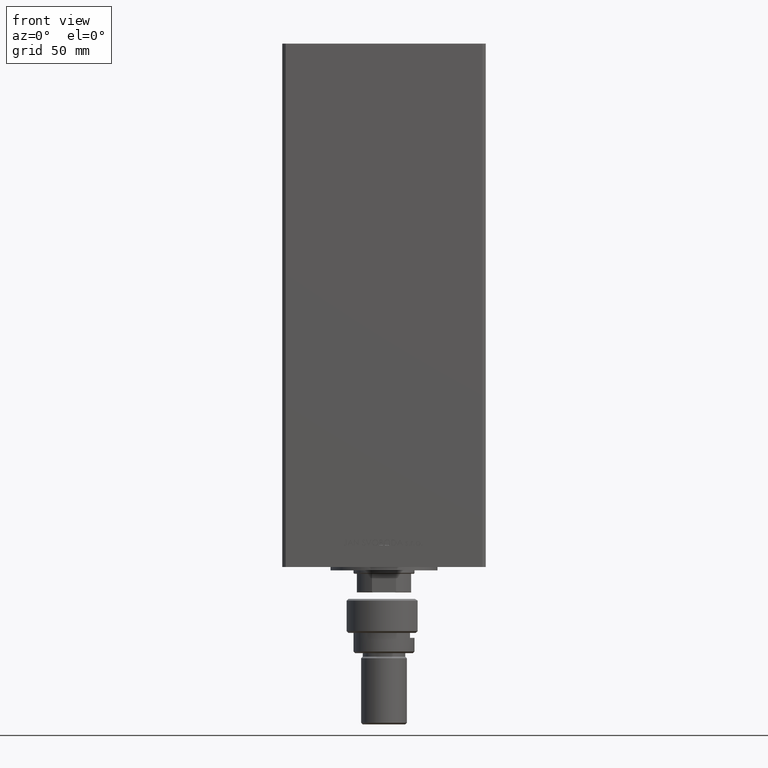
[diagram: clean part render]
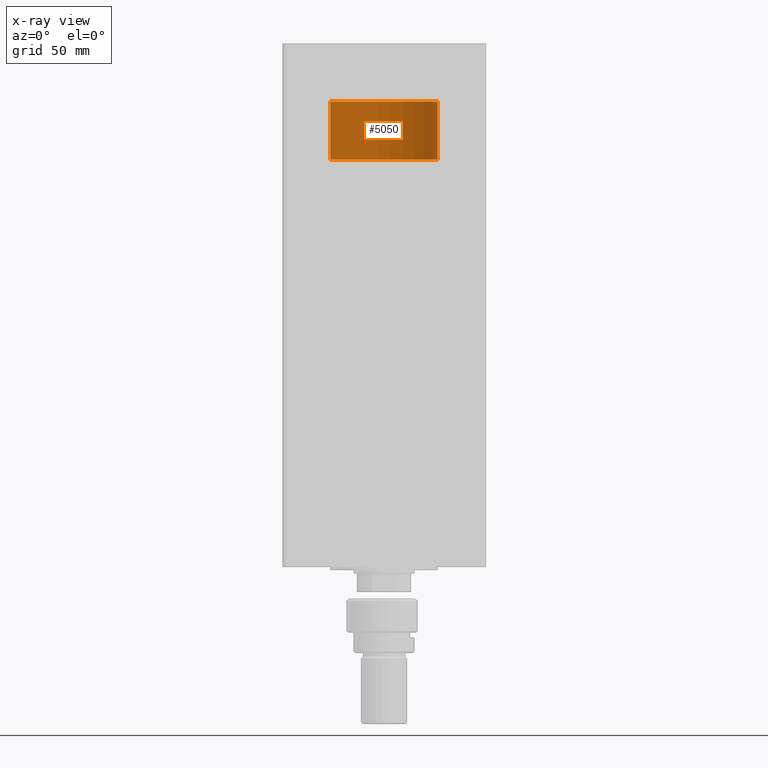
[diagram: x-ray — body ghosted, one internal face saturated and labeled with its STEP entity id]
A machine part, front view, then the same camera in x-ray: the body is ghosted and one INTERNAL B-rep face — a face not visible from any outside direction — is saturated and labeled: STEP entity #5050.
In plain terms, the highlighted cylindrical surface (partial cylindrical patch) has radius 31.5 mm, axis along (0, -0, 1).
Its self-contained STEP definition (entity closure, byte-faithful):
#1247 = ORIENTED_EDGE ( 'NONE', *, *, #35538, .T. ) ;
#1557 = CARTESIAN_POINT ( 'NONE',  ( -31.50000000000000000, 0.000000000000000000, 0.000000000000000000 ) ) ;
#1677 = ORIENTED_EDGE ( 'NONE', *, *, #7058, .F. ) ;
#1944 = CARTESIAN_POINT ( 'NONE',  ( 0.000000000000000000, 0.000000000000000000, 34.25000000000000000 ) ) ;
#2085 = CARTESIAN_POINT ( 'NONE',  ( 31.50000000000000000, 3.857637417314162689E-15, 34.25000000000000000 ) ) ;
#2427 = DIRECTION ( 'NONE',  ( -0.000000000000000000, -0.000000000000000000, -1.000000000000000000 ) ) ;
#2670 = VECTOR ( 'NONE', #26120, 1000.000000000000000 ) ;
#3125 = EDGE_CURVE ( 'NONE', #45974, #47592, #6576, .T. ) ;
#5050 = ADVANCED_FACE ( 'NONE', ( #21753 ), #33706, .T. ) ;
#5910 = DIRECTION ( 'NONE',  ( 0.000000000000000000, 0.000000000000000000, 1.000000000000000000 ) ) ;
#6576 = CIRCLE ( 'NONE', #19566, 31.50000000000000000 ) ;
#7058 = EDGE_CURVE ( 'NONE', #29254, #13486, #31496, .T. ) ;
#10861 = CARTESIAN_POINT ( 'NONE',  ( -31.50000000000000000, 0.000000000000000000, 34.25000000000000000 ) ) ;
#12667 = ORIENTED_EDGE ( 'NONE', *, *, #22013, .F. ) ;
#13486 = VERTEX_POINT ( 'NONE', #39541 ) ;
#14639 = DIRECTION ( 'NONE',  ( 1.000000000000000000, 0.000000000000000000, 0.000000000000000000 ) ) ;
#19566 = AXIS2_PLACEMENT_3D ( 'NONE', #44557, #5910, #47878 ) ;
#21021 = VECTOR ( 'NONE', #32105, 1000.000000000000000 ) ;
#21753 = FACE_OUTER_BOUND ( 'NONE', #44316, .T. ) ;
#21773 = DIRECTION ( 'NONE',  ( 0.000000000000000000, 0.000000000000000000, 1.000000000000000000 ) ) ;
#22013 = EDGE_CURVE ( 'NONE', #13486, #47592, #22312, .T. ) ;
#22312 = LINE ( 'NONE', #10861, #2670 ) ;
#24212 = LINE ( 'NONE', #2085, #21021 ) ;
#25298 = ORIENTED_EDGE ( 'NONE', *, *, #3125, .T. ) ;
#25832 = AXIS2_PLACEMENT_3D ( 'NONE', #26349, #21773, #14639 ) ;
#26120 = DIRECTION ( 'NONE',  ( -0.000000000000000000, -0.000000000000000000, -1.000000000000000000 ) ) ;
#26349 = CARTESIAN_POINT ( 'NONE',  ( 0.000000000000000000, 0.000000000000000000, 34.25000000000000000 ) ) ;
#27775 = CARTESIAN_POINT ( 'NONE',  ( 31.50000000000000000, 3.857637417314162689E-15, 0.000000000000000000 ) ) ;
#29254 = VERTEX_POINT ( 'NONE', #31323 ) ;
#31323 = CARTESIAN_POINT ( 'NONE',  ( 31.50000000000000000, 3.857637417314162689E-15, 34.25000000000000000 ) ) ;
#31496 = CIRCLE ( 'NONE', #25832, 31.50000000000000000 ) ;
#31763 = AXIS2_PLACEMENT_3D ( 'NONE', #1944, #2427, #49237 ) ;
#32105 = DIRECTION ( 'NONE',  ( -0.000000000000000000, -0.000000000000000000, -1.000000000000000000 ) ) ;
#33706 = CYLINDRICAL_SURFACE ( 'NONE', #31763, 31.50000000000000000 ) ;
#35538 = EDGE_CURVE ( 'NONE', #29254, #45974, #24212, .T. ) ;
#39541 = CARTESIAN_POINT ( 'NONE',  ( -31.50000000000000000, 0.000000000000000000, 34.25000000000000000 ) ) ;
#44316 = EDGE_LOOP ( 'NONE', ( #1677, #1247, #25298, #12667 ) ) ;
#44557 = CARTESIAN_POINT ( 'NONE',  ( 0.000000000000000000, 0.000000000000000000, 0.000000000000000000 ) ) ;
#45974 = VERTEX_POINT ( 'NONE', #27775 ) ;
#47592 = VERTEX_POINT ( 'NONE', #1557 ) ;
#47878 = DIRECTION ( 'NONE',  ( 1.000000000000000000, 0.000000000000000000, 0.000000000000000000 ) ) ;
#49237 = DIRECTION ( 'NONE',  ( -1.000000000000000000, 0.000000000000000000, 0.000000000000000000 ) ) ;